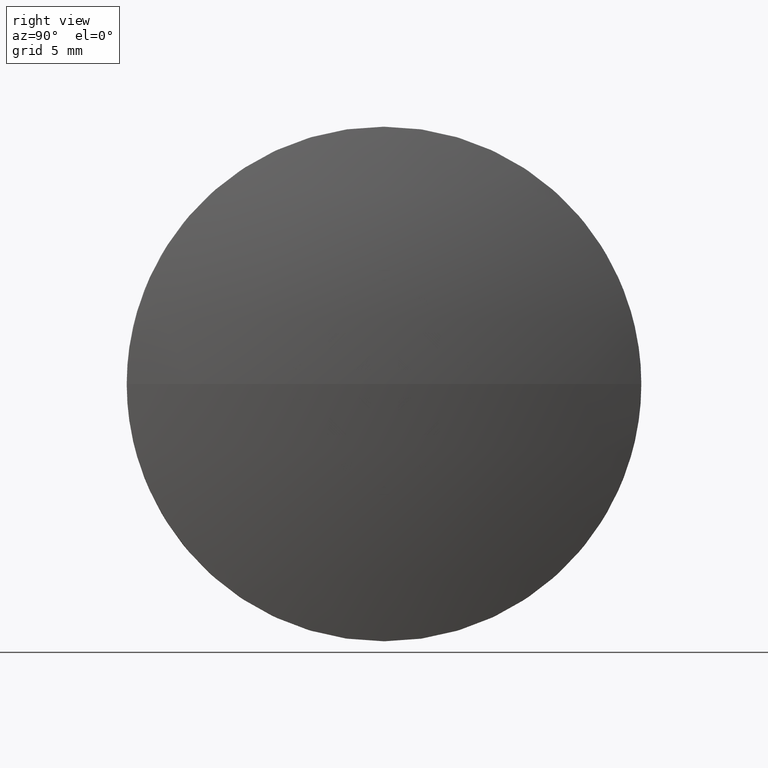
[diagram: clean part render]
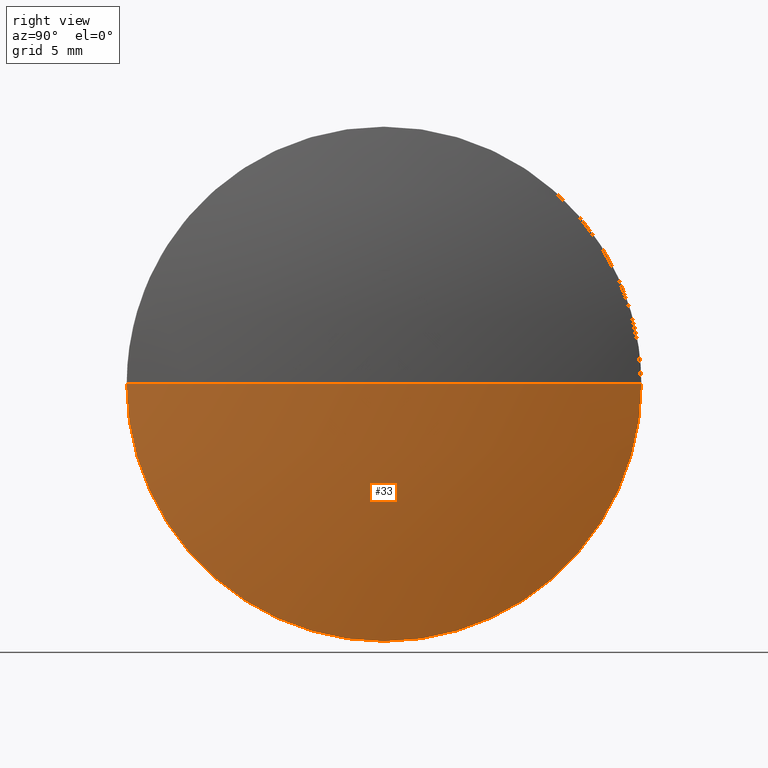
[diagram: same view with one face highlighted and labeled with its STEP entity id]
A machine part, right view. The second image highlights one B-rep face of the part: STEP entity #33.
In plain terms, the highlighted spherical surface has radius 51.5005 mm.
Its self-contained STEP definition (entity closure, byte-faithful):
#5 = VERTEX_POINT ( 'NONE', #183 ) ;
#13 = SPHERICAL_SURFACE ( 'NONE', #98, 51.50051948051952900 ) ;
#14 = DIRECTION ( 'NONE',  ( -0.0000000000000000000, 0.0000000000000000000, -1.000000000000000000 ) ) ;
#15 = DIRECTION ( 'NONE',  ( -1.000000000000000000, -0.0000000000000000000, -0.0000000000000000000 ) ) ;
#17 = CARTESIAN_POINT ( 'NONE',  ( 58.69840306798278100, 45.01047268998112100, 0.0000000000000000000 ) ) ;
#26 = DIRECTION ( 'NONE',  ( 0.0000000000000000000, 1.224646799147353200E-016, -1.000000000000000000 ) ) ;
#28 = CARTESIAN_POINT ( 'NONE',  ( 58.69840306798278100, 32.51047268998112800, 0.0000000000000000000 ) ) ;
#33 = ADVANCED_FACE ( 'NONE', ( #51 ), #13, .T. ) ;
#35 = EDGE_CURVE ( 'NONE', #184, #5, #158, .T. ) ;
#36 = EDGE_LOOP ( 'NONE', ( #121, #171, #155, #175 ) ) ;
#51 = FACE_OUTER_BOUND ( 'NONE', #36, .T. ) ;
#58 = EDGE_CURVE ( 'NONE', #131, #184, #64, .T. ) ;
#59 = EDGE_CURVE ( 'NONE', #5, #61, #108, .T. ) ;
#61 = VERTEX_POINT ( 'NONE', #127 ) ;
#63 = DIRECTION ( 'NONE',  ( 1.000000000000000000, 0.0000000000000000000, 0.0000000000000000000 ) ) ;
#64 = CIRCLE ( 'NONE', #132, 51.50051948051952900 ) ;
#67 = CARTESIAN_POINT ( 'NONE',  ( 8.737883587463251400, 32.51047268998112800, 0.0000000000000000000 ) ) ;
#76 = EDGE_CURVE ( 'NONE', #131, #61, #148, .T. ) ;
#92 = CARTESIAN_POINT ( 'NONE',  ( 58.69840306798278100, 32.51047268998112800, 0.0000000000000000000 ) ) ;
#93 = DIRECTION ( 'NONE',  ( -1.000000000000000000, -0.0000000000000000000, -0.0000000000000000000 ) ) ;
#98 = AXIS2_PLACEMENT_3D ( 'NONE', #152, #14, #124 ) ;
#108 = CIRCLE ( 'NONE', #138, 12.50000000000000400 ) ;
#111 = DIRECTION ( 'NONE',  ( 0.0000000000000000000, 0.0000000000000000000, 1.000000000000000000 ) ) ;
#121 = ORIENTED_EDGE ( 'NONE', *, *, #58, .F. ) ;
#124 = DIRECTION ( 'NONE',  ( 0.0000000000000000000, 1.000000000000000000, 0.0000000000000000000 ) ) ;
#125 = DIRECTION ( 'NONE',  ( 0.0000000000000000000, 1.000000000000000000, 1.224646799147353500E-016 ) ) ;
#127 = CARTESIAN_POINT ( 'NONE',  ( 58.69840306798278100, 20.01047268998112800, -1.530808498934191100E-015 ) ) ;
#130 = CARTESIAN_POINT ( 'NONE',  ( 60.23840306798278000, 32.51047268998112800, 0.0000000000000000000 ) ) ;
#131 = VERTEX_POINT ( 'NONE', #130 ) ;
#132 = AXIS2_PLACEMENT_3D ( 'NONE', #167, #136, #63 ) ;
#136 = DIRECTION ( 'NONE',  ( -0.0000000000000000000, 0.0000000000000000000, 1.000000000000000000 ) ) ;
#138 = AXIS2_PLACEMENT_3D ( 'NONE', #92, #93, #111 ) ;
#148 = CIRCLE ( 'NONE', #166, 51.50051948051952200 ) ;
#149 = AXIS2_PLACEMENT_3D ( 'NONE', #28, #15, #182 ) ;
#152 = CARTESIAN_POINT ( 'NONE',  ( 8.737883587463251400, 32.51047268998112800, 0.0000000000000000000 ) ) ;
#155 = ORIENTED_EDGE ( 'NONE', *, *, #59, .F. ) ;
#158 = CIRCLE ( 'NONE', #149, 12.50000000000000400 ) ;
#166 = AXIS2_PLACEMENT_3D ( 'NONE', #67, #26, #125 ) ;
#167 = CARTESIAN_POINT ( 'NONE',  ( 8.737883587463251400, 32.51047268998112800, 0.0000000000000000000 ) ) ;
#171 = ORIENTED_EDGE ( 'NONE', *, *, #76, .T. ) ;
#175 = ORIENTED_EDGE ( 'NONE', *, *, #35, .F. ) ;
#182 = DIRECTION ( 'NONE',  ( 0.0000000000000000000, 0.0000000000000000000, 1.000000000000000000 ) ) ;
#183 = CARTESIAN_POINT ( 'NONE',  ( 58.69840306798278100, 32.51047268998112800, -12.50000000000000400 ) ) ;
#184 = VERTEX_POINT ( 'NONE', #17 ) ;